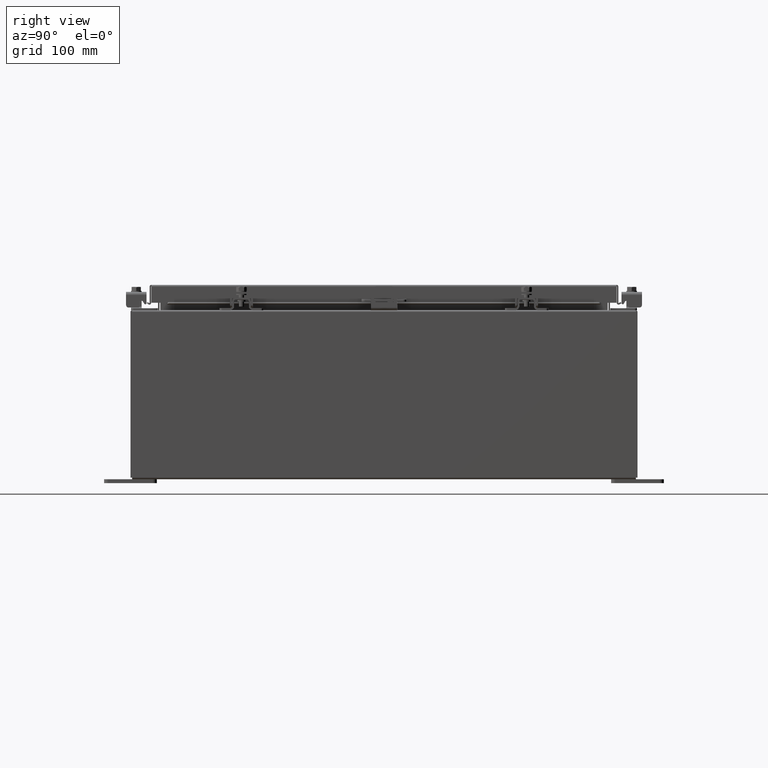
[diagram: clean part render]
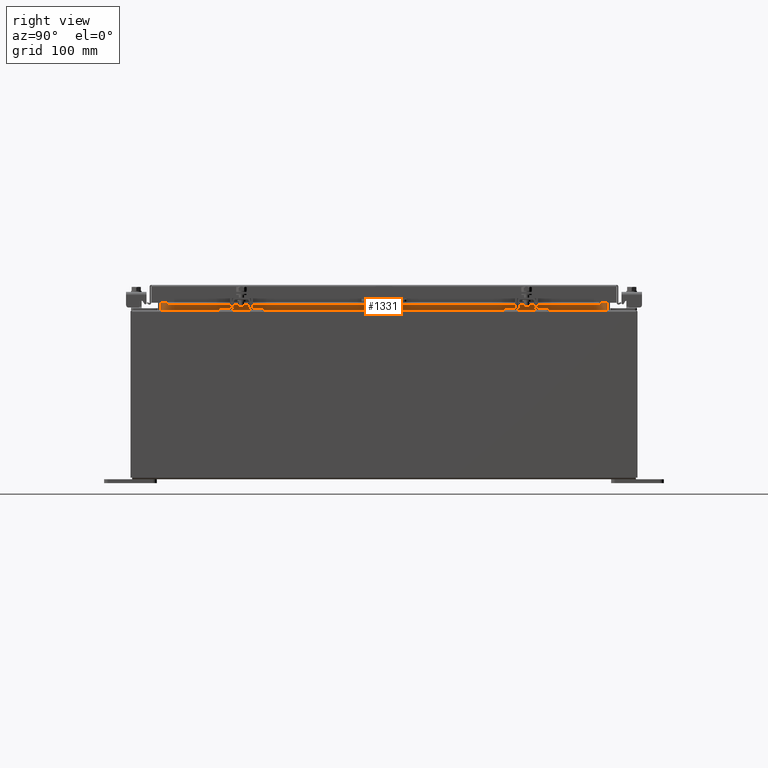
[diagram: same view with one face highlighted and labeled with its STEP entity id]
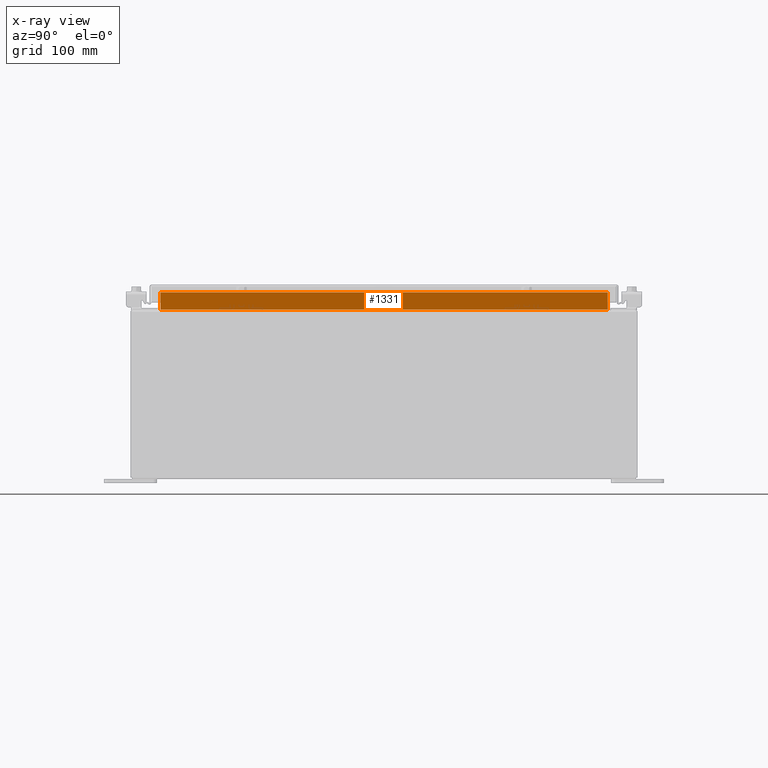
[diagram: x-ray of the same camera — body ghosted, the highlighted face saturated]
A machine part, right view. The second image highlights one B-rep face of the part: STEP entity #1331.
The next image is the same camera in x-ray: the body ghosted, the highlighted face saturated — about 0% of this face is hidden behind the body in this view.
In plain terms, the highlighted planar face has unit normal (1, 0, -0).
Its self-contained STEP definition (entity closure, byte-faithful):
#348 = EDGE_CURVE ( 'NONE', #25573, #11847, #13621, .T. ) ;
#1331 = ADVANCED_FACE ( 'NONE', ( #18279 ), #26956, .T. ) ;
#3483 = DIRECTION ( 'NONE',  ( 2.361913319930198800E-015, -0.0000000000000000000, 1.000000000000000000 ) ) ;
#3791 = CARTESIAN_POINT ( 'NONE',  ( 8.699700000000028400, 10.59374999999999600, 7.925300000000007100 ) ) ;
#4886 = CARTESIAN_POINT ( 'NONE',  ( 8.699700000000028400, 10.59374999999999600, 7.938300000000007900 ) ) ;
#5002 = DIRECTION ( 'NONE',  ( 1.000000000000000000, 0.0000000000000000000, -2.361913319930196000E-015 ) ) ;
#11847 = VERTEX_POINT ( 'NONE', #28107 ) ;
#12077 = DIRECTION ( 'NONE',  ( -2.361913319930196000E-015, 0.0000000000000000000, -1.000000000000000000 ) ) ;
#12289 = CARTESIAN_POINT ( 'NONE',  ( 8.699700000000033700, 10.59374999999999600, 8.762900000000007200 ) ) ;
#13194 = AXIS2_PLACEMENT_3D ( 'NONE', #29158, #5002, #12077 ) ;
#13514 = CARTESIAN_POINT ( 'NONE',  ( 8.699700000000030200, -10.59375000000000000, 8.850600000000007100 ) ) ;
#13621 = LINE ( 'NONE', #4886, #19496 ) ;
#13986 = CARTESIAN_POINT ( 'NONE',  ( 8.699700000000033700, -10.59375000000000000, 8.762900000000007200 ) ) ;
#14578 = LINE ( 'NONE', #13514, #20466 ) ;
#15484 = ORIENTED_EDGE ( 'NONE', *, *, #29692, .F. ) ;
#15668 = ORIENTED_EDGE ( 'NONE', *, *, #348, .F. ) ;
#16314 = EDGE_CURVE ( 'NONE', #20501, #25573, #26548, .T. ) ;
#16400 = DIRECTION ( 'NONE',  ( 5.157471138481205900E-017, -1.000000000000000000, 1.547241341544361900E-016 ) ) ;
#16955 = ORIENTED_EDGE ( 'NONE', *, *, #16314, .F. ) ;
#17229 = VERTEX_POINT ( 'NONE', #21979 ) ;
#18279 = FACE_OUTER_BOUND ( 'NONE', #24500, .T. ) ;
#18426 = VECTOR ( 'NONE', #19010, 39.37007874015748100 ) ;
#19010 = DIRECTION ( 'NONE',  ( 0.0000000000000000000, 1.000000000000000000, 0.0000000000000000000 ) ) ;
#19496 = VECTOR ( 'NONE', #16400, 39.37007874015748100 ) ;
#20466 = VECTOR ( 'NONE', #3483, 39.37007874015748100 ) ;
#20501 = VERTEX_POINT ( 'NONE', #12289 ) ;
#21372 = DIRECTION ( 'NONE',  ( -2.361913319930196000E-015, -0.0000000000000000000, -1.000000000000000000 ) ) ;
#21931 = ORIENTED_EDGE ( 'NONE', *, *, #30592, .F. ) ;
#21979 = CARTESIAN_POINT ( 'NONE',  ( 8.699700000000030200, -10.59375000000000000, 8.762900000000007200 ) ) ;
#24500 = EDGE_LOOP ( 'NONE', ( #16955, #21931, #15484, #15668 ) ) ;
#25573 = VERTEX_POINT ( 'NONE', #31563 ) ;
#26548 = LINE ( 'NONE', #3791, #28120 ) ;
#26956 = PLANE ( 'NONE',  #13194 ) ;
#28107 = CARTESIAN_POINT ( 'NONE',  ( 8.699700000000028400, -10.59374999999999800, 7.938300000000009700 ) ) ;
#28120 = VECTOR ( 'NONE', #21372, 39.37007874015748100 ) ;
#29158 = CARTESIAN_POINT ( 'NONE',  ( 8.699700000000010600, 0.0000000000000000000, -2.054793730939675100E-014 ) ) ;
#29692 = EDGE_CURVE ( 'NONE', #11847, #17229, #14578, .T. ) ;
#30592 = EDGE_CURVE ( 'NONE', #17229, #20501, #31742, .T. ) ;
#31563 = CARTESIAN_POINT ( 'NONE',  ( 8.699700000000028400, 10.59374999999999600, 7.938300000000009700 ) ) ;
#31742 = LINE ( 'NONE', #13986, #18426 ) ;